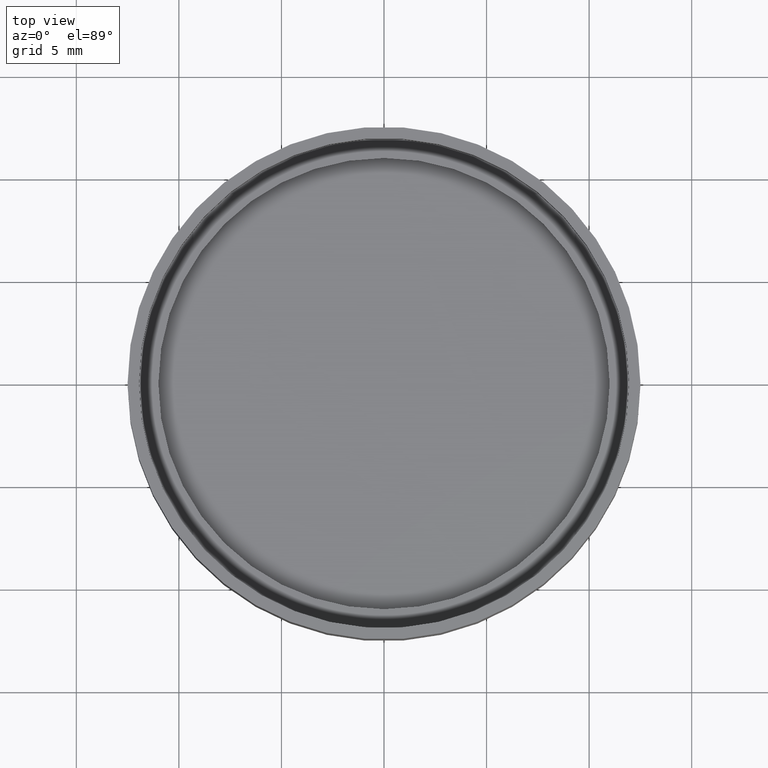
[diagram: clean part render]
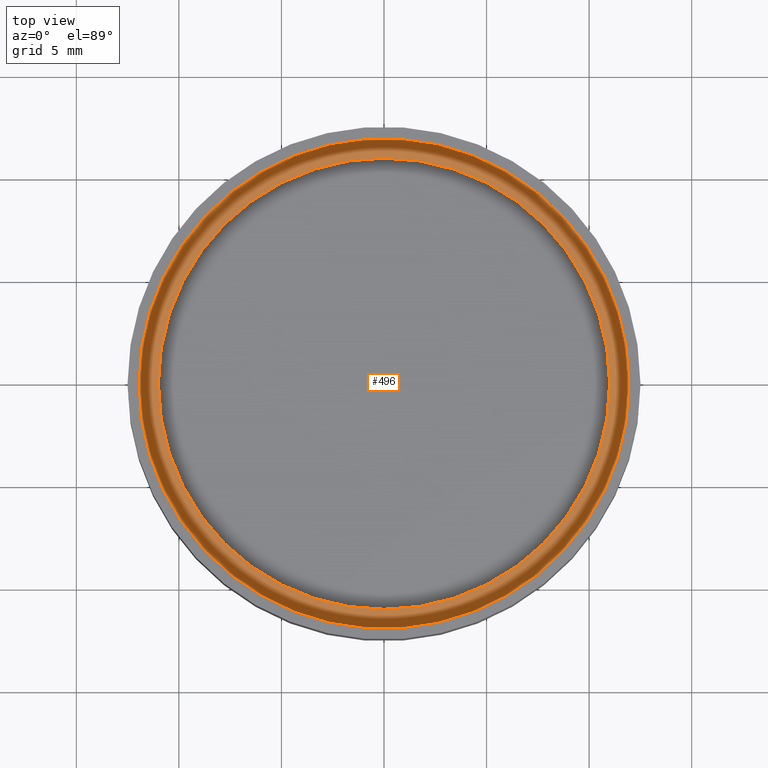
[diagram: same view with one face highlighted and labeled with its STEP entity id]
A machine part, top view. The second image highlights one B-rep face of the part: STEP entity #496.
In plain terms, the highlighted planar face has unit normal (0, 0, 1).
Its self-contained STEP definition (entity closure, byte-faithful):
#26 = EDGE_CURVE ( 'NONE', #115, #106, #131, .T. ) ;
#30 = FACE_OUTER_BOUND ( 'NONE', #689, .T. ) ;
#49 = CARTESIAN_POINT ( 'NONE',  ( 11.00000000000000000, 0.0000000000000000000, 2.761999999999998700 ) ) ;
#50 = EDGE_CURVE ( 'NONE', #106, #115, #646, .T. ) ;
#79 = EDGE_CURVE ( 'NONE', #181, #310, #301, .T. ) ;
#96 = CARTESIAN_POINT ( 'NONE',  ( 0.0000000000000000000, 0.0000000000000000000, 2.761999999999998700 ) ) ;
#106 = VERTEX_POINT ( 'NONE', #197 ) ;
#115 = VERTEX_POINT ( 'NONE', #367 ) ;
#131 = CIRCLE ( 'NONE', #284, 11.93799999999999700 ) ;
#181 = VERTEX_POINT ( 'NONE', #49 ) ;
#183 = AXIS2_PLACEMENT_3D ( 'NONE', #644, #246, #701 ) ;
#197 = CARTESIAN_POINT ( 'NONE',  ( 11.93799999999999700, -2.915787728451079300E-016, 2.761999999999998700 ) ) ;
#199 = CARTESIAN_POINT ( 'NONE',  ( 0.0000000000000000000, -2.915787728451079300E-016, 2.761999999999998700 ) ) ;
#218 = EDGE_CURVE ( 'NONE', #310, #181, #538, .T. ) ;
#246 = DIRECTION ( 'NONE',  ( -0.0000000000000000000, -0.0000000000000000000, -1.000000000000000000 ) ) ;
#266 = ORIENTED_EDGE ( 'NONE', *, *, #79, .F. ) ;
#269 = DIRECTION ( 'NONE',  ( 0.0000000000000000000, 0.0000000000000000000, 1.000000000000000000 ) ) ;
#270 = DIRECTION ( 'NONE',  ( 0.0000000000000000000, 0.0000000000000000000, 1.000000000000000000 ) ) ;
#284 = AXIS2_PLACEMENT_3D ( 'NONE', #199, #471, #587 ) ;
#298 = DIRECTION ( 'NONE',  ( 0.0000000000000000000, 0.0000000000000000000, 1.000000000000000000 ) ) ;
#301 = CIRCLE ( 'NONE', #425, 11.00000000000000000 ) ;
#310 = VERTEX_POINT ( 'NONE', #663 ) ;
#367 = CARTESIAN_POINT ( 'NONE',  ( -11.93799999999999700, 1.170404575977001900E-015, 2.761999999999998700 ) ) ;
#368 = EDGE_LOOP ( 'NONE', ( #266, #638 ) ) ;
#425 = AXIS2_PLACEMENT_3D ( 'NONE', #96, #298, #477 ) ;
#471 = DIRECTION ( 'NONE',  ( -0.0000000000000000000, -0.0000000000000000000, -1.000000000000000000 ) ) ;
#477 = DIRECTION ( 'NONE',  ( 1.000000000000000000, 0.0000000000000000000, 0.0000000000000000000 ) ) ;
#496 = ADVANCED_FACE ( 'NONE', ( #715, #30 ), #677, .T. ) ;
#501 = DIRECTION ( 'NONE',  ( 1.000000000000000000, 0.0000000000000000000, -0.0000000000000000000 ) ) ;
#538 = CIRCLE ( 'NONE', #551, 11.00000000000000000 ) ;
#545 = AXIS2_PLACEMENT_3D ( 'NONE', #611, #270, #501 ) ;
#551 = AXIS2_PLACEMENT_3D ( 'NONE', #605, #269, #601 ) ;
#587 = DIRECTION ( 'NONE',  ( 1.000000000000000000, 0.0000000000000000000, 0.0000000000000000000 ) ) ;
#601 = DIRECTION ( 'NONE',  ( 1.000000000000000000, 0.0000000000000000000, 0.0000000000000000000 ) ) ;
#605 = CARTESIAN_POINT ( 'NONE',  ( 0.0000000000000000000, 0.0000000000000000000, 2.761999999999998700 ) ) ;
#611 = CARTESIAN_POINT ( 'NONE',  ( 0.0000000000000000000, -2.915787728451079300E-016, 2.761999999999998700 ) ) ;
#638 = ORIENTED_EDGE ( 'NONE', *, *, #218, .F. ) ;
#644 = CARTESIAN_POINT ( 'NONE',  ( 0.0000000000000000000, -2.915787728451079300E-016, 2.761999999999998700 ) ) ;
#646 = CIRCLE ( 'NONE', #183, 11.93799999999999700 ) ;
#663 = CARTESIAN_POINT ( 'NONE',  ( -11.00000000000000000, 1.347111479062088400E-015, 2.761999999999998700 ) ) ;
#677 = PLANE ( 'NONE',  #545 ) ;
#687 = ORIENTED_EDGE ( 'NONE', *, *, #26, .F. ) ;
#689 = EDGE_LOOP ( 'NONE', ( #696, #687 ) ) ;
#696 = ORIENTED_EDGE ( 'NONE', *, *, #50, .F. ) ;
#701 = DIRECTION ( 'NONE',  ( 1.000000000000000000, 0.0000000000000000000, 0.0000000000000000000 ) ) ;
#715 = FACE_BOUND ( 'NONE', #368, .T. ) ;